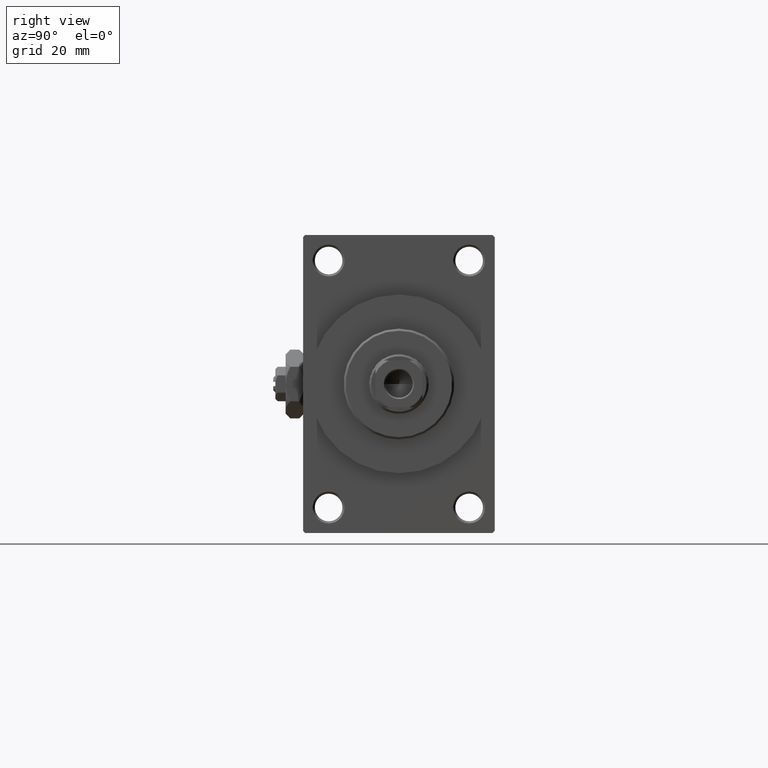
[diagram: clean part render]
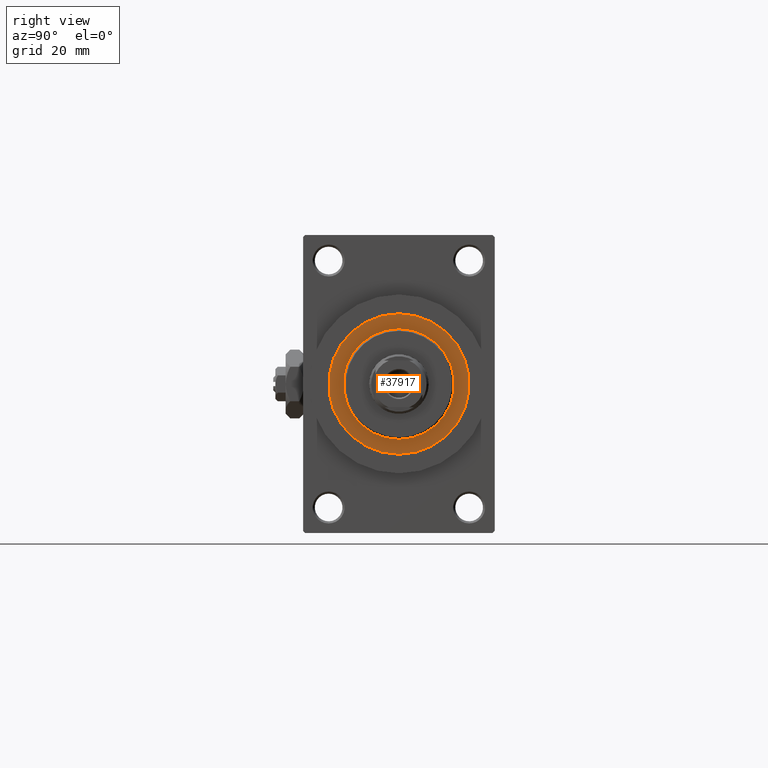
[diagram: same view with one face highlighted and labeled with its STEP entity id]
A machine part, right view. The second image highlights one B-rep face of the part: STEP entity #37917.
In plain terms, the highlighted planar face has unit normal (1, -0, -0).
Its self-contained STEP definition (entity closure, byte-faithful):
#81 = CARTESIAN_POINT ( 'NONE',  ( 0.000000000000000000, 0.000000000000000000, 43.25999999999999801 ) ) ;
#1904 = EDGE_CURVE ( 'NONE', #5950, #45651, #13234, .T. ) ;
#3447 = DIRECTION ( 'NONE',  ( 1.000000000000000000, 0.000000000000000000, 0.000000000000000000 ) ) ;
#3523 = AXIS2_PLACEMENT_3D ( 'NONE', #81, #41514, #10483 ) ;
#5833 = DIRECTION ( 'NONE',  ( 0.000000000000000000, 0.000000000000000000, 1.000000000000000000 ) ) ;
#5950 = VERTEX_POINT ( 'NONE', #39022 ) ;
#9303 = ORIENTED_EDGE ( 'NONE', *, *, #42034, .F. ) ;
#9984 = CARTESIAN_POINT ( 'NONE',  ( 13.00000000000000178, 1.592040838891559293E-15, 43.25999999999999801 ) ) ;
#10234 = PLANE ( 'NONE',  #3523 ) ;
#10483 = DIRECTION ( 'NONE',  ( 1.000000000000000000, 0.000000000000000000, -0.000000000000000000 ) ) ;
#10990 = FACE_BOUND ( 'NONE', #35180, .T. ) ;
#13234 = CIRCLE ( 'NONE', #48966, 16.50000000000000000 ) ;
#13743 = DIRECTION ( 'NONE',  ( 1.000000000000000000, 0.000000000000000000, 0.000000000000000000 ) ) ;
#16146 = CARTESIAN_POINT ( 'NONE',  ( 0.000000000000000000, 0.000000000000000000, 43.25999999999999801 ) ) ;
#16316 = VERTEX_POINT ( 'NONE', #9984 ) ;
#19333 = AXIS2_PLACEMENT_3D ( 'NONE', #33531, #41234, #37504 ) ;
#20326 = EDGE_CURVE ( 'NONE', #45651, #5950, #43860, .T. ) ;
#21440 = EDGE_CURVE ( 'NONE', #16316, #34117, #39914, .T. ) ;
#21904 = FACE_OUTER_BOUND ( 'NONE', #37927, .T. ) ;
#23268 = AXIS2_PLACEMENT_3D ( 'NONE', #16146, #23598, #34531 ) ;
#23598 = DIRECTION ( 'NONE',  ( 0.000000000000000000, 0.000000000000000000, 1.000000000000000000 ) ) ;
#30424 = ORIENTED_EDGE ( 'NONE', *, *, #20326, .T. ) ;
#33531 = CARTESIAN_POINT ( 'NONE',  ( 0.000000000000000000, 0.000000000000000000, 43.25999999999999801 ) ) ;
#34117 = VERTEX_POINT ( 'NONE', #34900 ) ;
#34531 = DIRECTION ( 'NONE',  ( 1.000000000000000000, 0.000000000000000000, 0.000000000000000000 ) ) ;
#34900 = CARTESIAN_POINT ( 'NONE',  ( -13.00000000000000178, 0.000000000000000000, 43.25999999999999801 ) ) ;
#35180 = EDGE_LOOP ( 'NONE', ( #9303, #37121 ) ) ;
#35822 = CARTESIAN_POINT ( 'NONE',  ( 16.50000000000000000, 2.020667218593133100E-15, 43.25999999999999801 ) ) ;
#36955 = AXIS2_PLACEMENT_3D ( 'NONE', #37435, #44638, #3447 ) ;
#37121 = ORIENTED_EDGE ( 'NONE', *, *, #21440, .F. ) ;
#37435 = CARTESIAN_POINT ( 'NONE',  ( 0.000000000000000000, 0.000000000000000000, 43.25999999999999801 ) ) ;
#37504 = DIRECTION ( 'NONE',  ( 1.000000000000000000, 0.000000000000000000, 0.000000000000000000 ) ) ;
#37911 = ORIENTED_EDGE ( 'NONE', *, *, #1904, .T. ) ;
#37917 = ADVANCED_FACE ( 'NONE', ( #10990, #21904 ), #10234, .T. ) ;
#37927 = EDGE_LOOP ( 'NONE', ( #37911, #30424 ) ) ;
#39022 = CARTESIAN_POINT ( 'NONE',  ( -16.50000000000000000, 0.000000000000000000, 43.25999999999999801 ) ) ;
#39914 = CIRCLE ( 'NONE', #19333, 13.00000000000000178 ) ;
#41234 = DIRECTION ( 'NONE',  ( 0.000000000000000000, 0.000000000000000000, 1.000000000000000000 ) ) ;
#41514 = DIRECTION ( 'NONE',  ( 0.000000000000000000, 0.000000000000000000, 1.000000000000000000 ) ) ;
#41706 = CIRCLE ( 'NONE', #36955, 13.00000000000000178 ) ;
#42034 = EDGE_CURVE ( 'NONE', #34117, #16316, #41706, .T. ) ;
#43803 = CARTESIAN_POINT ( 'NONE',  ( 0.000000000000000000, 0.000000000000000000, 43.25999999999999801 ) ) ;
#43860 = CIRCLE ( 'NONE', #23268, 16.50000000000000000 ) ;
#44638 = DIRECTION ( 'NONE',  ( 0.000000000000000000, 0.000000000000000000, 1.000000000000000000 ) ) ;
#45651 = VERTEX_POINT ( 'NONE', #35822 ) ;
#48966 = AXIS2_PLACEMENT_3D ( 'NONE', #43803, #5833, #13743 ) ;